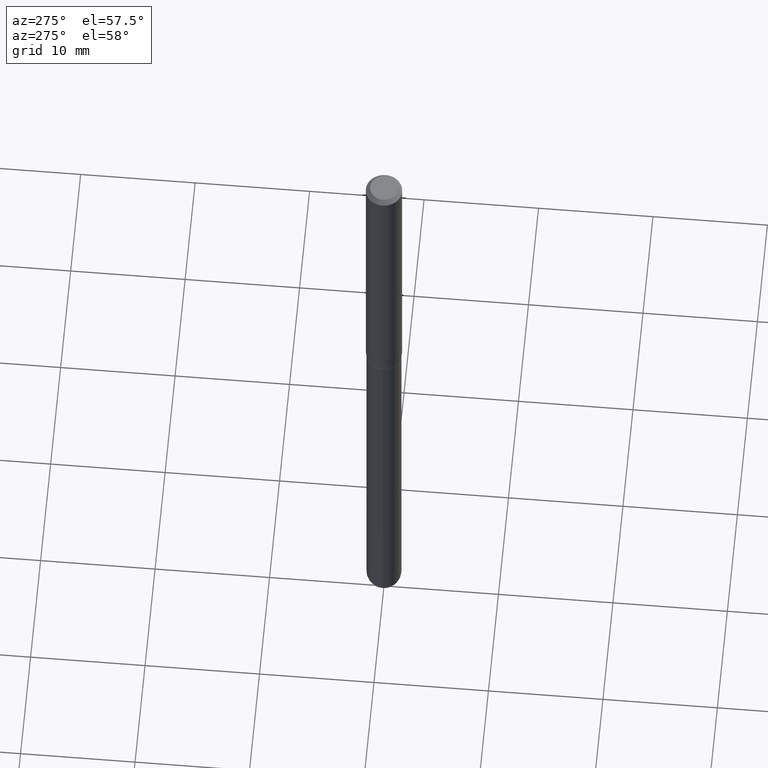
[diagram: clean part render]
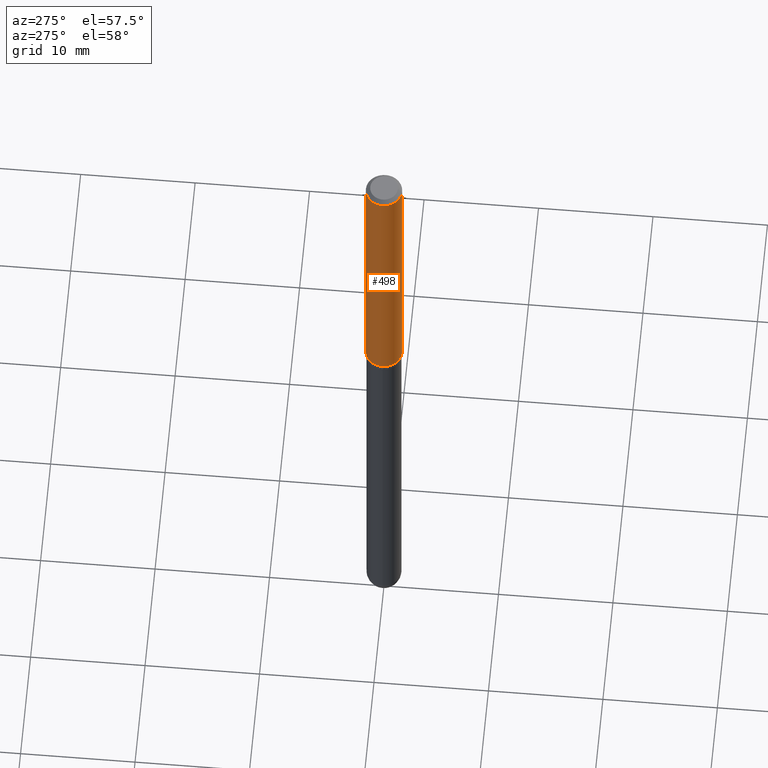
[diagram: same view with one face highlighted and labeled with its STEP entity id]
A machine part, auxiliary view. The second image highlights one B-rep face of the part: STEP entity #498.
In plain terms, the highlighted cylindrical surface (edge-blend (fillet) strip) has radius 1.5875 mm, axis along (-0, 0, 1).
Its self-contained STEP definition (entity closure, byte-faithful):
#24 = DIRECTION ( 'NONE',  ( -2.445308575750456249E-29, 3.491710797945358078E-15, 1.000000000000000000 ) ) ;
#94 = ORIENTED_EDGE ( 'NONE', *, *, #441, .T. ) ;
#108 = LINE ( 'NONE', #296, #310 ) ;
#116 = AXIS2_PLACEMENT_3D ( 'NONE', #120, #231, #475 ) ;
#120 = CARTESIAN_POINT ( 'NONE',  ( 0.000000000000000000, 0.000000000000000000, 0.000000000000000000 ) ) ;
#159 = CARTESIAN_POINT ( 'NONE',  ( 4.440892098500625669E-16, 0.06250000000000000000, -2.182319248715848552E-16 ) ) ;
#202 = VERTEX_POINT ( 'NONE', #241 ) ;
#207 = CIRCLE ( 'NONE', #495, 0.06250000000000000000 ) ;
#208 = CARTESIAN_POINT ( 'NONE',  ( 2.544758964925770056E-29, -3.633718232584457154E-15, -1.040669872981078825 ) ) ;
#226 = DIRECTION ( 'NONE',  ( -2.445308575750456249E-29, 3.491710797945357683E-15, 1.000000000000000000 ) ) ;
#231 = DIRECTION ( 'NONE',  ( -2.445308575750456249E-29, 3.491710797945357683E-15, 1.000000000000000000 ) ) ;
#236 = EDGE_LOOP ( 'NONE', ( #474, #94, #404, #312 ) ) ;
#241 = CARTESIAN_POINT ( 'NONE',  ( -4.364351673553912750E-16, -0.06250000000000005551, -0.01499999999999979128 ) ) ;
#250 = DIRECTION ( 'NONE',  ( -2.445308575750456249E-29, 3.491710797945357683E-15, 1.000000000000000000 ) ) ;
#267 = EDGE_CURVE ( 'NONE', #482, #202, #108, .T. ) ;
#268 = VERTEX_POINT ( 'NONE', #386 ) ;
#296 = CARTESIAN_POINT ( 'NONE',  ( -4.364351673553916201E-16, -0.06250000000000000000, 2.182319248715848552E-16 ) ) ;
#310 = VECTOR ( 'NONE', #24, 39.37007874015748143 ) ;
#312 = ORIENTED_EDGE ( 'NONE', *, *, #400, .F. ) ;
#342 = DIRECTION ( 'NONE',  ( -6.982962677686265922E-15, -1.000000000000000000, 4.370956789862821150E-15 ) ) ;
#343 = CARTESIAN_POINT ( 'NONE',  ( 3.667962863625686808E-31, -5.237566196918039483E-17, -0.01500000000000000812 ) ) ;
#346 = CIRCLE ( 'NONE', #439, 0.06250000000000000000 ) ;
#383 = CARTESIAN_POINT ( 'NONE',  ( 4.440892098500882541E-16, 0.06249999999999995143, -0.01500000000000022669 ) ) ;
#386 = CARTESIAN_POINT ( 'NONE',  ( 4.440892098500880569E-16, 0.06249999999999638484, -1.040669872981079047 ) ) ;
#393 = LINE ( 'NONE', #159, #501 ) ;
#395 = FACE_OUTER_BOUND ( 'NONE', #236, .T. ) ;
#400 = EDGE_CURVE ( 'NONE', #449, #202, #346, .T. ) ;
#404 = ORIENTED_EDGE ( 'NONE', *, *, #267, .T. ) ;
#436 = DIRECTION ( 'NONE',  ( -2.445308575750456249E-29, 3.491710797945358078E-15, 1.000000000000000000 ) ) ;
#439 = AXIS2_PLACEMENT_3D ( 'NONE', #343, #226, #473 ) ;
#441 = EDGE_CURVE ( 'NONE', #268, #482, #207, .T. ) ;
#449 = VERTEX_POINT ( 'NONE', #383 ) ;
#473 = DIRECTION ( 'NONE',  ( -6.982962677686265922E-15, -1.000000000000000000, 3.483106191921935554E-15 ) ) ;
#474 = ORIENTED_EDGE ( 'NONE', *, *, #480, .F. ) ;
#475 = DIRECTION ( 'NONE',  ( -6.982962677686265922E-15, -1.000000000000000000, 3.491710797945357683E-15 ) ) ;
#480 = EDGE_CURVE ( 'NONE', #268, #449, #393, .T. ) ;
#481 = CYLINDRICAL_SURFACE ( 'NONE', #116, 0.06250000000000000000 ) ;
#482 = VERTEX_POINT ( 'NONE', #508 ) ;
#495 = AXIS2_PLACEMENT_3D ( 'NONE', #208, #250, #342 ) ;
#498 = ADVANCED_FACE ( 'NONE', ( #395 ), #481, .T. ) ;
#501 = VECTOR ( 'NONE', #436, 39.37007874015748143 ) ;
#508 = CARTESIAN_POINT ( 'NONE',  ( -4.364351673553660314E-16, -0.06250000000000360822, -1.040669872981078603 ) ) ;